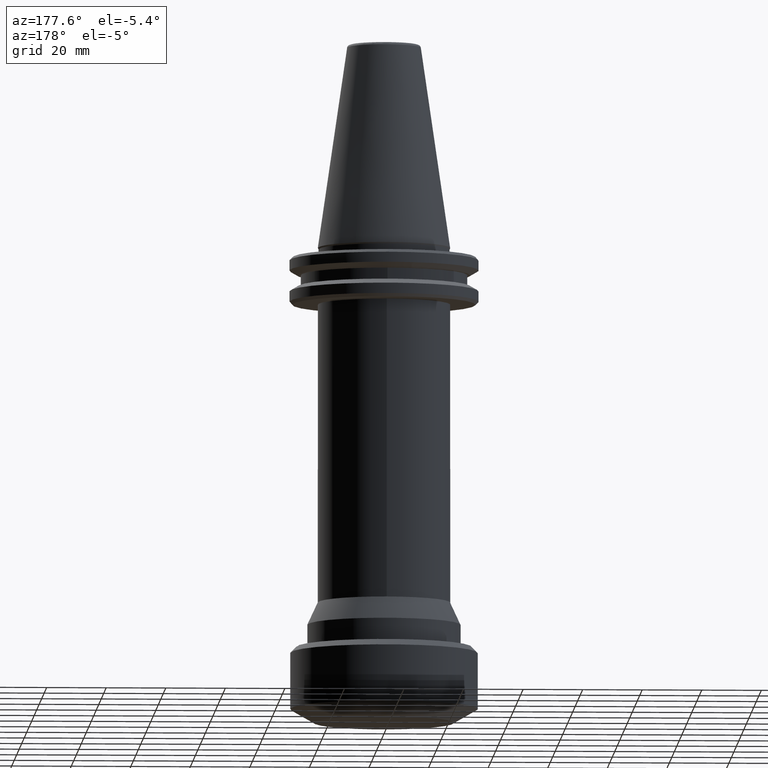
[diagram: clean part render]
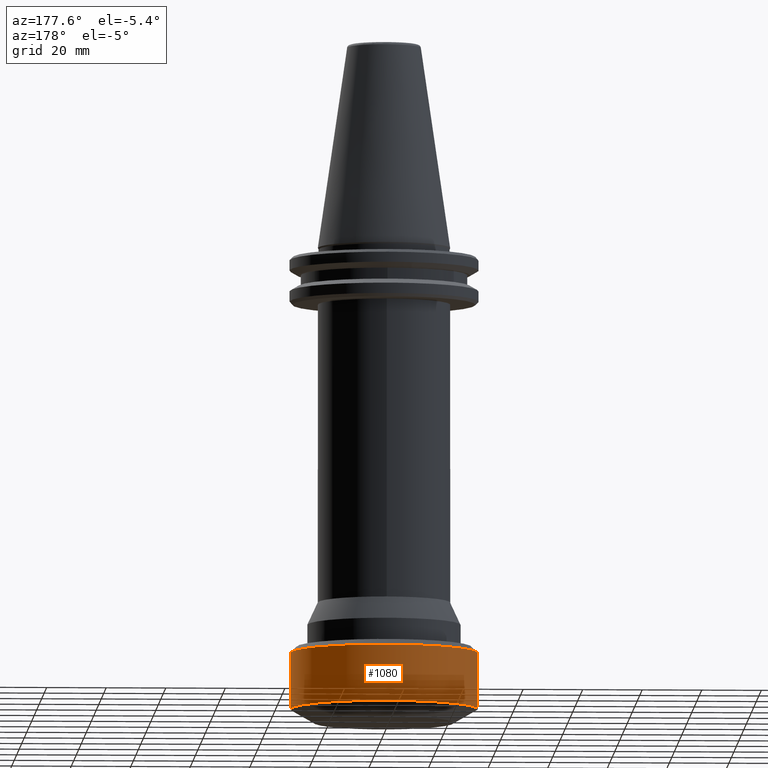
[diagram: same view with one face highlighted and labeled with its STEP entity id]
A machine part, auxiliary view. The second image highlights one B-rep face of the part: STEP entity #1080.
In plain terms, the highlighted cylindrical surface (partial cylindrical patch) has radius 31.5 mm, axis along (-0, -0, 1).
Its self-contained STEP definition (entity closure, byte-faithful):
#36 = VERTEX_POINT ( 'NONE', #848 ) ;
#95 = DIRECTION ( 'NONE',  ( -0.0000000000000000000, -0.0000000000000000000, 1.000000000000000000 ) ) ;
#190 = ORIENTED_EDGE ( 'NONE', *, *, #1175, .T. ) ;
#192 = CIRCLE ( 'NONE', #980, 31.50000000000000000 ) ;
#265 = VECTOR ( 'NONE', #1455, 1000.000000000000000 ) ;
#288 = CARTESIAN_POINT ( 'NONE',  ( 0.0000000000000000000, 0.0000000000000000000, 28.53335263925077600 ) ) ;
#399 = CYLINDRICAL_SURFACE ( 'NONE', #1773, 31.50000000000000000 ) ;
#431 = CARTESIAN_POINT ( 'NONE',  ( -31.50000000000000000, 3.857637417314162700E-015, -155.3811978460000200 ) ) ;
#439 = EDGE_CURVE ( 'NONE', #1025, #1510, #1449, .T. ) ;
#440 = DIRECTION ( 'NONE',  ( -0.0000000000000000000, -0.0000000000000000000, 1.000000000000000000 ) ) ;
#445 = AXIS2_PLACEMENT_3D ( 'NONE', #1484, #590, #1631 ) ;
#590 = DIRECTION ( 'NONE',  ( -0.0000000000000000000, -0.0000000000000000000, 1.000000000000000000 ) ) ;
#660 = CARTESIAN_POINT ( 'NONE',  ( 31.50000000000000000, 0.0000000000000000000, 28.53335263925077600 ) ) ;
#703 = ORIENTED_EDGE ( 'NONE', *, *, #439, .F. ) ;
#751 = FACE_OUTER_BOUND ( 'NONE', #1261, .T. ) ;
#760 = CARTESIAN_POINT ( 'NONE',  ( -31.50000000000000000, 3.857637417314162700E-015, 28.53335263925077600 ) ) ;
#848 = CARTESIAN_POINT ( 'NONE',  ( -31.50000000000000000, 3.857637417314162700E-015, -136.5000000000000000 ) ) ;
#882 = VECTOR ( 'NONE', #1515, 1000.000000000000000 ) ;
#980 = AXIS2_PLACEMENT_3D ( 'NONE', #993, #95, #1143 ) ;
#993 = CARTESIAN_POINT ( 'NONE',  ( 0.0000000000000000000, 0.0000000000000000000, -136.5000000000000000 ) ) ;
#1025 = VERTEX_POINT ( 'NONE', #1134 ) ;
#1080 = ADVANCED_FACE ( 'NONE', ( #751 ), #399, .T. ) ;
#1134 = CARTESIAN_POINT ( 'NONE',  ( 31.50000000000000000, 0.0000000000000000000, -155.3811978460000200 ) ) ;
#1143 = DIRECTION ( 'NONE',  ( 1.000000000000000000, 0.0000000000000000000, 0.0000000000000000000 ) ) ;
#1162 = VERTEX_POINT ( 'NONE', #431 ) ;
#1175 = EDGE_CURVE ( 'NONE', #1025, #1162, #1293, .T. ) ;
#1182 = ORIENTED_EDGE ( 'NONE', *, *, #1716, .F. ) ;
#1185 = DIRECTION ( 'NONE',  ( 1.000000000000000000, 0.0000000000000000000, 0.0000000000000000000 ) ) ;
#1213 = ORIENTED_EDGE ( 'NONE', *, *, #1771, .T. ) ;
#1261 = EDGE_LOOP ( 'NONE', ( #190, #1213, #1182, #703 ) ) ;
#1290 = LINE ( 'NONE', #760, #882 ) ;
#1293 = CIRCLE ( 'NONE', #445, 31.50000000000000000 ) ;
#1393 = CARTESIAN_POINT ( 'NONE',  ( 31.50000000000000000, 0.0000000000000000000, -136.5000000000000000 ) ) ;
#1449 = LINE ( 'NONE', #660, #265 ) ;
#1455 = DIRECTION ( 'NONE',  ( -0.0000000000000000000, -0.0000000000000000000, 1.000000000000000000 ) ) ;
#1484 = CARTESIAN_POINT ( 'NONE',  ( 0.0000000000000000000, 0.0000000000000000000, -155.3811978460000200 ) ) ;
#1510 = VERTEX_POINT ( 'NONE', #1393 ) ;
#1515 = DIRECTION ( 'NONE',  ( -0.0000000000000000000, -0.0000000000000000000, 1.000000000000000000 ) ) ;
#1631 = DIRECTION ( 'NONE',  ( 1.000000000000000000, 0.0000000000000000000, 0.0000000000000000000 ) ) ;
#1716 = EDGE_CURVE ( 'NONE', #1510, #36, #192, .T. ) ;
#1771 = EDGE_CURVE ( 'NONE', #1162, #36, #1290, .T. ) ;
#1773 = AXIS2_PLACEMENT_3D ( 'NONE', #288, #440, #1185 ) ;